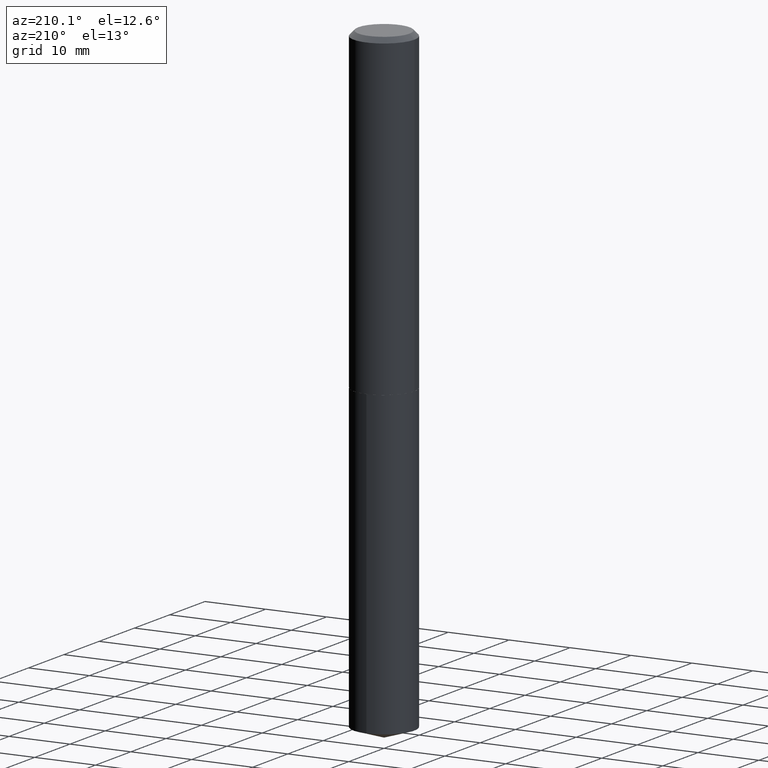
[diagram: clean part render]
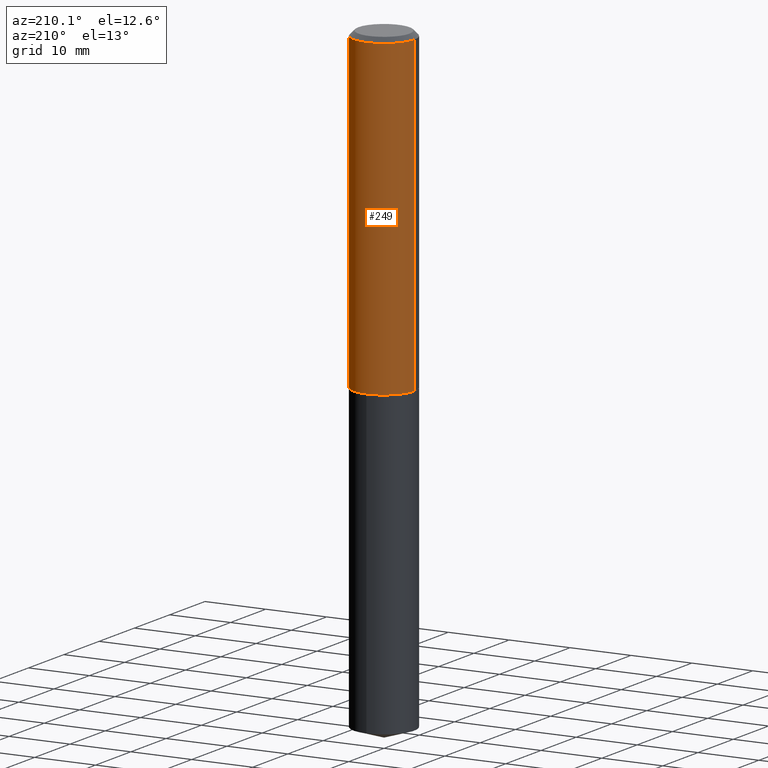
[diagram: same view with one face highlighted and labeled with its STEP entity id]
A machine part, auxiliary view. The second image highlights one B-rep face of the part: STEP entity #249.
In plain terms, the highlighted cylindrical surface (edge-blend (fillet) strip) has radius 5 mm, axis along (-0, 0, 1).
Its self-contained STEP definition (entity closure, byte-faithful):
#8 = FACE_OUTER_BOUND ( 'NONE', #365, .T. ) ;
#11 = LINE ( 'NONE', #346, #59 ) ;
#13 = EDGE_CURVE ( 'NONE', #170, #203, #110, .T. ) ;
#16 = AXIS2_PLACEMENT_3D ( 'NONE', #74, #131, #150 ) ;
#35 = EDGE_CURVE ( 'NONE', #203, #319, #266, .T. ) ;
#55 = CARTESIAN_POINT ( 'NONE',  ( 7.642090019328601786E-31, -1.091087918388490144E-16, -0.03125000000000020123 ) ) ;
#59 = VECTOR ( 'NONE', #318, 39.37007874015748143 ) ;
#74 = CARTESIAN_POINT ( 'NONE',  ( 5.005141005619118879E-29, -7.146014856210265909E-15, -2.046699999999999964 ) ) ;
#89 = ORIENTED_EDGE ( 'NONE', *, *, #313, .F. ) ;
#94 = ORIENTED_EDGE ( 'NONE', *, *, #123, .F. ) ;
#110 = CIRCLE ( 'NONE', #16, 0.1968500000000002470 ) ;
#123 = EDGE_CURVE ( 'NONE', #170, #367, #11, .T. ) ;
#131 = DIRECTION ( 'NONE',  ( -2.445468806185136597E-29, 3.491481338843145583E-15, 1.000000000000000000 ) ) ;
#137 = DIRECTION ( 'NONE',  ( 1.000000000000000000, -6.982962677686266711E-15, 4.876176775795935793E-29 ) ) ;
#140 = DIRECTION ( 'NONE',  ( 1.000000000000000000, -6.982962677686265922E-15, 0.000000000000000000 ) ) ;
#142 = ORIENTED_EDGE ( 'NONE', *, *, #35, .T. ) ;
#150 = DIRECTION ( 'NONE',  ( 1.000000000000000000, -6.982962677686269866E-15, 0.000000000000000000 ) ) ;
#163 = CARTESIAN_POINT ( 'NONE',  ( 0.1968500000000000250, -1.483704994941390709E-15, -0.03125000000000020123 ) ) ;
#170 = VERTEX_POINT ( 'NONE', #376 ) ;
#173 = VECTOR ( 'NONE', #270, 39.37007874015748143 ) ;
#203 = VERTEX_POINT ( 'NONE', #283 ) ;
#215 = CIRCLE ( 'NONE', #267, 0.1968500000000000250 ) ;
#229 = CARTESIAN_POINT ( 'NONE',  ( -0.1968500000000000250, -2.228858448680798929E-15, -0.03125000000000020123 ) ) ;
#233 = AXIS2_PLACEMENT_3D ( 'NONE', #377, #347, #137 ) ;
#235 = ORIENTED_EDGE ( 'NONE', *, *, #13, .T. ) ;
#249 = ADVANCED_FACE ( 'NONE', ( #8 ), #373, .T. ) ;
#266 = LINE ( 'NONE', #274, #173 ) ;
#267 = AXIS2_PLACEMENT_3D ( 'NONE', #55, #358, #140 ) ;
#270 = DIRECTION ( 'NONE',  ( -2.445468806185136877E-29, 3.491481338843145188E-15, 1.000000000000000000 ) ) ;
#274 = CARTESIAN_POINT ( 'NONE',  ( -0.1968500000000001082, 1.398703375343757985E-15, -9.682923725166787881E-30 ) ) ;
#283 = CARTESIAN_POINT ( 'NONE',  ( -0.1968500000000002470, -5.747311480866507333E-15, -2.046699999999999964 ) ) ;
#313 = EDGE_CURVE ( 'NONE', #367, #319, #215, .T. ) ;
#318 = DIRECTION ( 'NONE',  ( -2.445468806185136877E-29, 3.491481338843145188E-15, 1.000000000000000000 ) ) ;
#319 = VERTEX_POINT ( 'NONE', #229 ) ;
#346 = CARTESIAN_POINT ( 'NONE',  ( 0.1968500000000001082, -1.374596203102542397E-15, 9.598753983154305062E-30 ) ) ;
#347 = DIRECTION ( 'NONE',  ( -2.445468806185136597E-29, 3.491481338843145583E-15, 1.000000000000000000 ) ) ;
#358 = DIRECTION ( 'NONE',  ( -2.445468806185136597E-29, 3.491481338843145583E-15, 1.000000000000000000 ) ) ;
#365 = EDGE_LOOP ( 'NONE', ( #235, #142, #89, #94 ) ) ;
#367 = VERTEX_POINT ( 'NONE', #163 ) ;
#373 = CYLINDRICAL_SURFACE ( 'NONE', #233, 0.1968500000000001082 ) ;
#376 = CARTESIAN_POINT ( 'NONE',  ( 0.1968500000000002470, -8.520611059312810673E-15, -2.046699999999999964 ) ) ;
#377 = CARTESIAN_POINT ( 'NONE',  ( 0.000000000000000000, 0.000000000000000000, 0.000000000000000000 ) ) ;